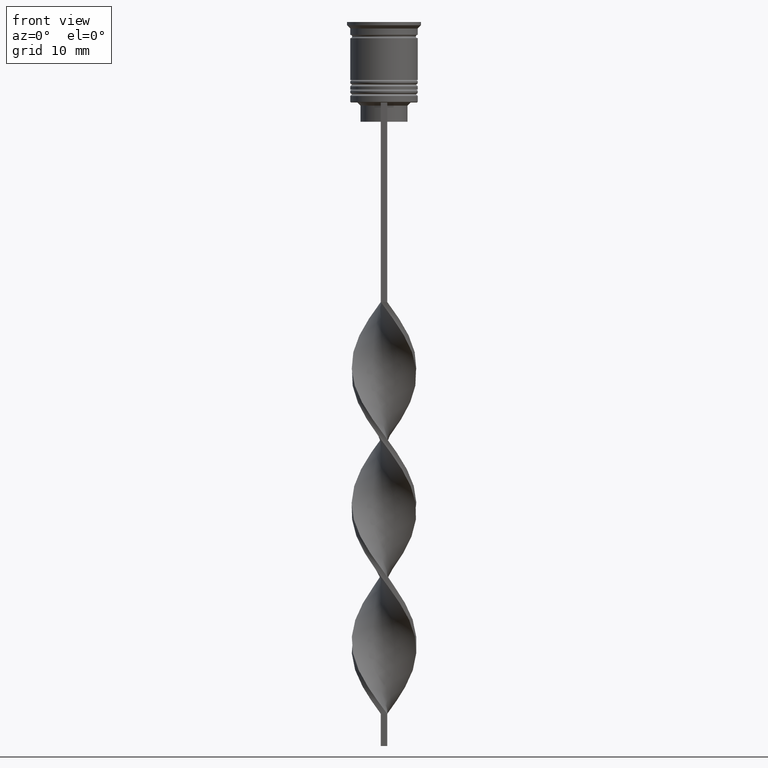
[diagram: clean part render]
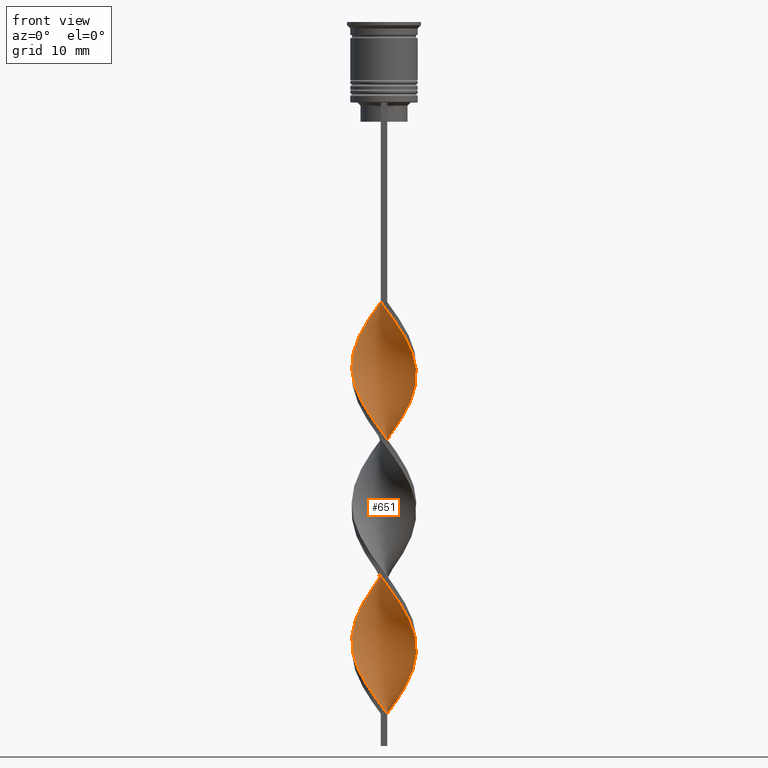
[diagram: same view with one face highlighted and labeled with its STEP entity id]
A machine part, front view. The second image highlights one B-rep face of the part: STEP entity #651.
In plain terms, the highlighted face is a freeform B-spline surface patch.
Its self-contained STEP definition (entity closure, byte-faithful):
#12 = CARTESIAN_POINT ( 'NONE',  ( 3.689868665289526284, -3.410992411735109808, -69.75641025641024839 ) ) ;
#14 = CARTESIAN_POINT ( 'NONE',  ( 0.1071099161113056170, 5.060710991611132137, -85.34615384615383959 ) ) ;
#34 = CARTESIAN_POINT ( 'NONE',  ( -4.225728863414810910, -2.786661774892328580, -57.44871794871794890 ) ) ;
#36 = CARTESIAN_POINT ( 'NONE',  ( -5.023812710617932886, 0.1063289642275891955, -96.01282051282051100 ) ) ;
#56 = CARTESIAN_POINT ( 'NONE',  ( -0.7111074127247647425, -4.974366919274038956, -105.8589743589743506 ) ) ;
#68 = VERTEX_POINT ( 'NONE', #864 ) ;
#77 = CARTESIAN_POINT ( 'NONE',  ( 2.941357917118423870, -4.074115069975903225, -91.08974358974359120 ) ) ;
#90 = CARTESIAN_POINT ( 'NONE',  ( -1.315104909338224992, -4.888022846936948440, -105.0384615384615330 ) ) ;
#92 =( BOUNDED_CURVE ( )  B_SPLINE_CURVE ( 2, ( #689, #2594, #987, #2858, #418, #1804, #153, #1236, #454, #973, #2071, #2329, #1537, #2630, #3406, #3140, #1181, #34, #284, #2375, #2644, #3191, #1940, #1835, #2467, #3434, #2093, #471, #3008, #568, #752, #487, #12, #821, #1363, #204, #3267, #1121, #1266, #1923, #2212, #2925, #1638, #3177, #2744, #3290, #2358, #1655, #861, #3450, #585, #1573, #300, #2390, #2666, #1381, #1023, #2189, #3025, #2451, #221, #1673, #1303, #1100, #1036, #3466, #2121, #187, #1006, #739, #2106, #2911, #1554, #1821, #1286, #3204, #1901, #2989, #554 ),
 .UNSPECIFIED., .F., .T. ) 
 B_SPLINE_CURVE_WITH_KNOTS ( ( 3, 2, 2, 2, 2, 2, 2, 2, 2, 2, 2, 2, 2, 2, 2, 2, 2, 2, 2, 2, 2, 2, 2, 2, 2, 2, 2, 2, 2, 2, 2, 2, 2, 2, 2, 2, 2, 2, 2, 3 ),
 ( 0.000000000000000000, 0.01923076923076923184, 0.03846153846153846367, 0.05769230769230768857, 0.07692307692307692735, 0.09615384615384615918, 0.1153846153846153771, 0.1346153846153846090, 0.1538461538461538547, 0.1730769230769230449, 0.1923076923076923184, 0.2115384615384615363, 0.2307692307692307543, 0.2500000000000000000, 0.2692307692307692180, 0.2884615384615384359, 0.3076923076923077094, 0.3269230769230769273, 0.3461538461538460898, 0.3653846153846153633, 0.3846153846153846367, 0.4038461538461539102, 0.4230769230769230727, 0.4423076923076922906, 0.4615384615384615086, 0.4807692307692307820, 0.5000000000000000000, 0.5192307692307692735, 0.5384615384615384359, 0.5576923076923077094, 0.5769230769230768718, 0.5961538461538461453, 0.6153846153846154188, 0.6346153846153845812, 0.6538461538461538547, 0.6730769230769230171, 0.6923076923076921796, 0.7115384615384615641, 0.7307692307692307265, 0.7500000000000000000 ),
 .UNSPECIFIED. ) 
 CURVE ( )  GEOMETRIC_REPRESENTATION_ITEM ( )  RATIONAL_B_SPLINE_CURVE ( ( 1.000000000000000000, 0.9927088740980539727, 1.000000000000000000, 0.9927088740980539727, 1.000000000000000000, 0.9927088740980539727, 1.000000000000000000, 0.9927088740980539727, 1.000000000000000000, 0.9927088740980539727, 1.000000000000000000, 0.9927088740980539727, 1.000000000000000000, 0.9927088740980539727, 1.000000000000000000, 0.9927088740980539727, 1.000000000000000000, 0.9927088740980539727, 1.000000000000000000, 0.9927088740980539727, 1.000000000000000000, 0.9927088740980539727, 1.000000000000000000, 0.9927088740980539727, 1.000000000000000000, 0.9927088740980539727, 1.000000000000000000, 0.9927088740980539727, 1.000000000000000000, 0.9927088740980539727, 1.000000000000000000, 0.9927088740980539727, 1.000000000000000000, 0.9927088740980539727, 1.000000000000000000, 0.9927088740980539727, 1.000000000000000000, 0.9927088740980539727, 1.000000000000000000, 0.9927088740980539727, 1.000000000000000000, 0.9927088740980539727, 1.000000000000000000, 0.9927088740980539727, 1.000000000000000000, 0.9927088740980539727, 1.000000000000000000, 0.9927088740980539727, 1.000000000000000000, 0.9927088740980539727, 1.000000000000000000, 0.9927088740980539727, 1.000000000000000000, 0.9927088740980539727, 1.000000000000000000, 0.9927088740980539727, 1.000000000000000000, 0.9927088740980539727, 1.000000000000000000, 0.9927088740980539727, 1.000000000000000000, 0.9927088740980539727, 1.000000000000000000, 0.9927088740980539727, 1.000000000000000000, 0.9927088740980539727, 1.000000000000000000, 0.9927088740980539727, 1.000000000000000000, 0.9927088740980539727, 1.000000000000000000, 0.9927088740980539727, 1.000000000000000000, 0.9927088740980539727, 1.000000000000000000, 0.9927088740980539727, 1.000000000000000000, 0.9927088740980539727, 1.000000000000000000 ) ) 
 REPRESENTATION_ITEM ( '' )  );
#102 = CARTESIAN_POINT ( 'NONE',  ( 4.693865276989234836, 1.894702360851922673, -57.44871794871794890 ) ) ;
#118 = CARTESIAN_POINT ( 'NONE',  ( 1.880887847392237244, -4.659641714287933389, -89.44871794871794179 ) ) ;
#144 = CARTESIAN_POINT ( 'NONE',  ( -0.5000000000000000000, -4.999999999999999112, -43.50000000000000000 ) ) ;
#153 = CARTESIAN_POINT ( 'NONE',  ( -3.689868665289526728, 3.410992411735109364, -48.42307692307691269 ) ) ;
#177 = CARTESIAN_POINT ( 'NONE',  ( 0.7111074127247624110, -4.974366919274038068, -45.14102564102563520 ) ) ;
#186 = CARTESIAN_POINT ( 'NONE',  ( -3.436045048790596468, 3.716969558312887667, -70.57692307692306599 ) ) ;
#187 = CARTESIAN_POINT ( 'NONE',  ( -4.769828676396804745, -1.694403338218443134, -98.47435897435896379 ) ) ;
#195 = CARTESIAN_POINT ( 'NONE',  ( 4.225728863414809133, -2.786661774892328136, -93.55128205128204399 ) ) ;
#201 = CARTESIAN_POINT ( 'NONE',  ( 4.852383656948341617, 1.305516313869969469, -56.62820512820513130 ) ) ;
#204 = CARTESIAN_POINT ( 'NONE',  ( 4.693865276989234836, -1.894702360851926892, -72.21794871794871540 ) ) ;
#211 = CARTESIAN_POINT ( 'NONE',  ( 2.256988544190328128, 4.530813501584091796, -62.37179487179486870 ) ) ;
#220 = CARTESIAN_POINT ( 'NONE',  ( 4.852383656948341617, 1.305516313869969469, -99.29487179487178139 ) ) ;
#221 = CARTESIAN_POINT ( 'NONE',  ( -4.398951702833860722, 2.428831800708952215, -92.73076923076922640 ) ) ;
#226 = CARTESIAN_POINT ( 'NONE',  ( -3.436045048790596468, 3.716969558312887667, -70.57692307692306599 ) ) ;
#235 = CARTESIAN_POINT ( 'NONE',  ( 3.689868665289526284, -3.410992411735109808, -69.75641025641024839 ) ) ;
#240 = CARTESIAN_POINT ( 'NONE',  ( -4.497778769905805163, 2.240532556555386634, -73.03846153846153300 ) ) ;
#247 = CARTESIAN_POINT ( 'NONE',  ( 1.107109916111302050, -4.939289008388870528, -65.65384615384614619 ) ) ;
#255 = CARTESIAN_POINT ( 'NONE',  ( 2.766343873045447488, 4.194918542244164605, -61.55128205128204399 ) ) ;
#266 = CARTESIAN_POINT ( 'NONE',  ( -4.398951702833860722, 2.428831800708952215, -50.06410256410256210 ) ) ;
#279 = CARTESIAN_POINT ( 'NONE',  ( 0.4999999999999993339, -5.000000000000000888, -107.5000000000000000 ) ) ;
#284 = CARTESIAN_POINT ( 'NONE',  ( -3.830886956102705021, -3.251815666602607013, -58.26923076923076650 ) ) ;
#285 = CARTESIAN_POINT ( 'NONE',  ( 1.682049230150813424, -4.735051254986482938, -66.47435897435896379 ) ) ;
#300 = CARTESIAN_POINT ( 'NONE',  ( -0.5000000000000000000, 5.000000000000000888, -86.16666666666667140 ) ) ;
#301 = CARTESIAN_POINT ( 'NONE',  ( -0.5000000000000000000, 5.000000000000000888, -86.16666666666667140 ) ) ;
#322 = CARTESIAN_POINT ( 'NONE',  ( -2.766343873045447932, 4.194918542244166382, -89.44871794871794179 ) ) ;
#341 = CARTESIAN_POINT ( 'NONE',  ( -0.1071099161113050757, -5.060710991611132137, -106.6794871794871682 ) ) ;
#355 = EDGE_CURVE ( 'NONE', #408, #3298, #3446, .T. ) ;
#359 = CARTESIAN_POINT ( 'NONE',  ( -1.682049230150814978, 4.735051254986482050, -87.80769230769230660 ) ) ;
#364 = ORIENTED_EDGE ( 'NONE', *, *, #1020, .F. ) ;
#365 = CARTESIAN_POINT ( 'NONE',  ( -5.023812710617931110, -0.1063289642275845326, -76.32051282051281760 ) ) ;
#379 = CARTESIAN_POINT ( 'NONE',  ( -4.104038128678484831, 2.962961240565979093, -91.91025641025643722 ) ) ;
#408 = VERTEX_POINT ( 'NONE', #3510 ) ;
#418 = CARTESIAN_POINT ( 'NONE',  ( -2.766343873045447932, 4.194918542244166382, -46.78205128205127750 ) ) ;
#452 = CARTESIAN_POINT ( 'NONE',  ( -4.693865276989234836, -1.894702360851920009, -78.78205128205127039 ) ) ;
#454 = CARTESIAN_POINT ( 'NONE',  ( -4.398951702833860722, 2.428831800708952215, -50.06410256410256210 ) ) ;
#461 = CARTESIAN_POINT ( 'NONE',  ( 0.5000000000000006661, 4.999999999999999112, -64.83333333333332860 ) ) ;
#469 = CARTESIAN_POINT ( 'NONE',  ( -3.830886956102703245, 3.251815666602607013, -71.39743589743588359 ) ) ;
#471 = CARTESIAN_POINT ( 'NONE',  ( 1.107109916111301828, -4.939289008388870528, -65.65384615384614619 ) ) ;
#476 = CARTESIAN_POINT ( 'NONE',  ( 3.275699201900567736, 3.859023582904236527, -103.3974358974358836 ) ) ;
#484 = CARTESIAN_POINT ( 'NONE',  ( 4.693865276989234836, -1.894702360851927114, -72.21794871794871540 ) ) ;
#487 = CARTESIAN_POINT ( 'NONE',  ( 3.275699201900568180, -3.859023582904239191, -68.93589743589743080 ) ) ;
#497 = CARTESIAN_POINT ( 'NONE',  ( 3.689868665289526728, 3.410992411735105811, -102.5769230769230660 ) ) ;
#507 = CARTESIAN_POINT ( 'NONE',  ( 5.010902036907450174, -0.7163302668880181523, -73.85897435897436480 ) ) ;
#513 = CARTESIAN_POINT ( 'NONE',  ( 4.104038128678485720, 2.962961240565976428, -101.7564102564102484 ) ) ;
#520 = CARTESIAN_POINT ( 'NONE',  ( 4.225728863414811798, 2.786661774892325916, -78.78205128205127039 ) ) ;
#526 = CARTESIAN_POINT ( 'NONE',  ( -5.023812710617931110, -0.1063289642275845326, -76.32051282051281760 ) ) ;
#534 = CARTESIAN_POINT ( 'NONE',  ( 4.769828676396802969, -1.694403338218443800, -95.19230769230769340 ) ) ;
#554 = CARTESIAN_POINT ( 'NONE',  ( 0.4999999999999993339, -5.000000000000000888, -107.5000000000000000 ) ) ;
#555 = CARTESIAN_POINT ( 'NONE',  ( -1.315104909338224992, -4.888022846936948440, -62.37179487179486870 ) ) ;
#568 = CARTESIAN_POINT ( 'NONE',  ( 2.256988544190325463, -4.530813501584094460, -67.29487179487178139 ) ) ;
#585 = CARTESIAN_POINT ( 'NONE',  ( 0.7111074127247676291, 4.974366919274039844, -84.52564102564103621 ) ) ;
#611 = CARTESIAN_POINT ( 'NONE',  ( -4.852383656948343393, 1.305516313869971912, -94.37179487179486159 ) ) ;
#618 = CARTESIAN_POINT ( 'NONE',  ( -5.036723384328412934, 0.5036723384328424258, -75.49999999999998579 ) ) ;
#634 = CARTESIAN_POINT ( 'NONE',  ( -4.225728863414807357, 2.786661774892329912, -72.21794871794871540 ) ) ;
#646 = CARTESIAN_POINT ( 'NONE',  ( -2.941357917118427423, -4.074115069975902337, -102.5769230769230660 ) ) ;
#651 = ADVANCED_FACE ( 'NONE', ( #2356 ), #730, .T. ) ;
#652 = CARTESIAN_POINT ( 'NONE',  ( 1.107109916111304715, 4.939289008388868751, -64.01282051282051100 ) ) ;
#676 = CARTESIAN_POINT ( 'NONE',  ( 5.036723384328412934, -0.5036723384328417596, -54.16666666666665719 ) ) ;
#689 = CARTESIAN_POINT ( 'NONE',  ( -0.5000000000000000000, 5.000000000000000888, -43.50000000000000000 ) ) ;
#730 =( BOUNDED_SURFACE ( )  B_SPLINE_SURFACE ( 1, 2, ( 
 ( #3071, #2002, #2894, #1430, #3349, #929, #2255, #2091, #2910, #1161, #946, #3089, #1199, #676, #2293, #1448, #201, #102, #738, #1699, #2516, #909, #1265, #3432, #2538, #652, #1758, #2561, #2024, #1985, #1536, #1819, #3054, #186, #469, #634, #2374, #1183, #1003, #618, #365, #2643, #1735, #452, #3175, #3109, #2829, #2790, #2628, #3367, #1472, #1553, #1283, #1717, #2808, #3449, #118, #1965, #77, #803, #1615, #1602, #1348, #534, #2388, #1316, #1084, #822, #220, #1069, #2119, #3501, #2155, #1050, #1021, #2958, #3202, #769, #3236 ),
 ( #2401, #1884, #2693, #2972, #3465, #2711, #3250, #2105, #266, #1902, #1850, #1364, #1586, #2434, #3190, #2945, #1639, #3479, #3513, #2171, #2992, #2140, #1833, #555, #2418, #2680, #2730, #247, #285, #2452, #750, #2664, #235, #2924, #1329, #484, #1571, #507, #1302, #1035, #3221, #790, #1870, #520, #2271, #1139, #3307, #1674, #1122, #880, #2763, #14, #301, #1101, #359, #2190, #322, #3324, #1958, #379, #2247, #3270, #611, #1942, #36, #3009, #1383, #1408, #2213, #2530, #2821, #3066, #646, #2228, #1178, #90, #56, #341, #3043 ) ),
 .UNSPECIFIED., .F., .F., .F. ) 
 B_SPLINE_SURFACE_WITH_KNOTS ( ( 2, 2 ),
 ( 3, 2, 2, 2, 2, 2, 2, 2, 2, 2, 2, 2, 2, 2, 2, 2, 2, 2, 2, 2, 2, 2, 2, 2, 2, 2, 2, 2, 2, 2, 2, 2, 2, 2, 2, 2, 2, 2, 2, 3 ),
 ( 0.000000000000000000, 1.000000000000000000 ),
 ( 0.000000000000000000, 0.01923076923076923184, 0.03846153846153846367, 0.05769230769230769551, 0.07692307692307692735, 0.09615384615384615918, 0.1153846153846153910, 0.1346153846153846090, 0.1538461538461538547, 0.1730769230769230727, 0.1923076923076923184, 0.2115384615384615363, 0.2307692307692307820, 0.2500000000000000000, 0.2692307692307692180, 0.2884615384615384359, 0.3076923076923077094, 0.3269230769230769273, 0.3461538461538461453, 0.3653846153846153633, 0.3846153846153846367, 0.4038461538461538547, 0.4230769230769230727, 0.4423076923076922906, 0.4615384615384615641, 0.4807692307692307820, 0.5000000000000000000, 0.5192307692307692735, 0.5384615384615384359, 0.5576923076923077094, 0.5769230769230768718, 0.5961538461538461453, 0.6153846153846154188, 0.6346153846153845812, 0.6538461538461538547, 0.6730769230769231282, 0.6923076923076922906, 0.7115384615384615641, 0.7307692307692307265, 0.7500000000000000000 ),
 .UNSPECIFIED. ) 
 GEOMETRIC_REPRESENTATION_ITEM ( )  RATIONAL_B_SPLINE_SURFACE ( (
 ( 1.000000000000000000, 0.9927088740980539727, 1.000000000000000000, 0.9927088740980539727, 1.000000000000000000, 0.9927088740980539727, 1.000000000000000000, 0.9927088740980539727, 1.000000000000000000, 0.9927088740980539727, 1.000000000000000000, 0.9927088740980539727, 1.000000000000000000, 0.9927088740980539727, 1.000000000000000000, 0.9927088740980539727, 1.000000000000000000, 0.9927088740980539727, 1.000000000000000000, 0.9927088740980539727, 1.000000000000000000, 0.9927088740980539727, 1.000000000000000000, 0.9927088740980539727, 1.000000000000000000, 0.9927088740980539727, 1.000000000000000000, 0.9927088740980539727, 1.000000000000000000, 0.9927088740980539727, 1.000000000000000000, 0.9927088740980539727, 1.000000000000000000, 0.9927088740980539727, 1.000000000000000000, 0.9927088740980539727, 1.000000000000000000, 0.9927088740980539727, 1.000000000000000000, 0.9927088740980539727, 1.000000000000000000, 0.9927088740980539727, 1.000000000000000000, 0.9927088740980539727, 1.000000000000000000, 0.9927088740980539727, 1.000000000000000000, 0.9927088740980539727, 1.000000000000000000, 0.9927088740980539727, 1.000000000000000000, 0.9927088740980539727, 1.000000000000000000, 0.9927088740980539727, 1.000000000000000000, 0.9927088740980539727, 1.000000000000000000, 0.9927088740980539727, 1.000000000000000000, 0.9927088740980539727, 1.000000000000000000, 0.9927088740980539727, 1.000000000000000000, 0.9927088740980539727, 1.000000000000000000, 0.9927088740980539727, 1.000000000000000000, 0.9927088740980539727, 1.000000000000000000, 0.9927088740980539727, 1.000000000000000000, 0.9927088740980539727, 1.000000000000000000, 0.9927088740980539727, 1.000000000000000000, 0.9927088740980539727, 1.000000000000000000, 0.9927088740980539727, 1.000000000000000000),
 ( 1.000000000000000000, 0.9927088740980539727, 1.000000000000000000, 0.9927088740980539727, 1.000000000000000000, 0.9927088740980539727, 1.000000000000000000, 0.9927088740980539727, 1.000000000000000000, 0.9927088740980539727, 1.000000000000000000, 0.9927088740980539727, 1.000000000000000000, 0.9927088740980539727, 1.000000000000000000, 0.9927088740980539727, 1.000000000000000000, 0.9927088740980539727, 1.000000000000000000, 0.9927088740980539727, 1.000000000000000000, 0.9927088740980539727, 1.000000000000000000, 0.9927088740980539727, 1.000000000000000000, 0.9927088740980539727, 1.000000000000000000, 0.9927088740980539727, 1.000000000000000000, 0.9927088740980539727, 1.000000000000000000, 0.9927088740980539727, 1.000000000000000000, 0.9927088740980539727, 1.000000000000000000, 0.9927088740980539727, 1.000000000000000000, 0.9927088740980539727, 1.000000000000000000, 0.9927088740980539727, 1.000000000000000000, 0.9927088740980539727, 1.000000000000000000, 0.9927088740980539727, 1.000000000000000000, 0.9927088740980539727, 1.000000000000000000, 0.9927088740980539727, 1.000000000000000000, 0.9927088740980539727, 1.000000000000000000, 0.9927088740980539727, 1.000000000000000000, 0.9927088740980539727, 1.000000000000000000, 0.9927088740980539727, 1.000000000000000000, 0.9927088740980539727, 1.000000000000000000, 0.9927088740980539727, 1.000000000000000000, 0.9927088740980539727, 1.000000000000000000, 0.9927088740980539727, 1.000000000000000000, 0.9927088740980539727, 1.000000000000000000, 0.9927088740980539727, 1.000000000000000000, 0.9927088740980539727, 1.000000000000000000, 0.9927088740980539727, 1.000000000000000000, 0.9927088740980539727, 1.000000000000000000, 0.9927088740980539727, 1.000000000000000000, 0.9927088740980539727, 1.000000000000000000) ) ) 
 REPRESENTATION_ITEM ( '' )  SURFACE ( )  );
#731 = CARTESIAN_POINT ( 'NONE',  ( -1.107109916111305603, -4.939289008388868751, -85.34615384615385381 ) ) ;
#738 = CARTESIAN_POINT ( 'NONE',  ( 4.398951702833859834, 2.428831800708949995, -58.26923076923076650 ) ) ;
#739 = CARTESIAN_POINT ( 'NONE',  ( -4.225728863414810910, -2.786661774892328580, -100.1153846153846132 ) ) ;
#744 = CARTESIAN_POINT ( 'NONE',  ( 4.104038128678485720, 2.962961240565976428, -59.08974358974358410 ) ) ;
#750 = CARTESIAN_POINT ( 'NONE',  ( 2.766343873045447488, -4.194918542244166382, -68.11538461538459899 ) ) ;
#752 = CARTESIAN_POINT ( 'NONE',  ( 2.766343873045447488, -4.194918542244166382, -68.11538461538459899 ) ) ;
#760 = CARTESIAN_POINT ( 'NONE',  ( 2.941357917118423870, -4.074115069975903225, -91.08974358974359120 ) ) ;
#769 = CARTESIAN_POINT ( 'NONE',  ( 1.107109916111304715, 4.939289008388868751, -106.6794871794871682 ) ) ;
#780 = CARTESIAN_POINT ( 'NONE',  ( 4.852383656948341617, 1.305516313869969469, -99.29487179487178139 ) ) ;
#790 = CARTESIAN_POINT ( 'NONE',  ( 4.769828676396806522, 1.694403338218441801, -77.14102564102563520 ) ) ;
#796 = CARTESIAN_POINT ( 'NONE',  ( 1.682049230150816088, 4.735051254986480274, -63.19230769230768630 ) ) ;
#803 = CARTESIAN_POINT ( 'NONE',  ( 3.436045048790597800, -3.716969558312886335, -91.91025641025643722 ) ) ;
#821 = CARTESIAN_POINT ( 'NONE',  ( 4.104038128678484831, -2.962961240565980425, -70.57692307692306599 ) ) ;
#822 = CARTESIAN_POINT ( 'NONE',  ( 5.010902036907448398, 0.7163302668880174862, -98.47435897435896379 ) ) ;
#861 = CARTESIAN_POINT ( 'NONE',  ( 1.880887847392241907, 4.659641714287933389, -82.88461538461537259 ) ) ;
#864 = CARTESIAN_POINT ( 'NONE',  ( 0.5000000000000006661, 4.999999999999999112, -107.5000000000000000 ) ) ;
#873 = CARTESIAN_POINT ( 'NONE',  ( -0.5000000000000000000, 5.000000000000000888, -43.50000000000000000 ) ) ;
#880 = CARTESIAN_POINT ( 'NONE',  ( 1.315104909338225436, 4.888022846936948440, -83.70512820512820440 ) ) ;
#909 = CARTESIAN_POINT ( 'NONE',  ( 3.275699201900568180, 3.859023582904236527, -60.73076923076922640 ) ) ;
#929 = CARTESIAN_POINT ( 'NONE',  ( 2.446670785446252161, -4.431260581638920115, -47.60256410256408799 ) ) ;
#946 = CARTESIAN_POINT ( 'NONE',  ( 4.497778769905805163, -2.240532556555385746, -51.70512820512820440 ) ) ;
#973 = CARTESIAN_POINT ( 'NONE',  ( -4.693865276989236612, 1.894702360851924228, -50.88461538461537970 ) ) ;
#981 = CARTESIAN_POINT ( 'NONE',  ( 1.315104909338222328, -4.888022846936947552, -45.96153846153845990 ) ) ;
#987 = CARTESIAN_POINT ( 'NONE',  ( -1.682049230150814978, 4.735051254986482050, -45.14102564102563520 ) ) ;
#990 = CARTESIAN_POINT ( 'NONE',  ( 0.4999999999999993339, -5.000000000000000888, -107.5000000000000000 ) ) ;
#1003 = CARTESIAN_POINT ( 'NONE',  ( -4.903276030362607507, 1.099037838325644723, -74.67948717948718240 ) ) ;
#1006 = CARTESIAN_POINT ( 'NONE',  ( -4.497778769905806939, -2.240532556555384858, -99.29487179487178139 ) ) ;
#1014 = CARTESIAN_POINT ( 'NONE',  ( 3.689868665289526728, 3.410992411735105811, -59.91025641025640880 ) ) ;
#1020 = EDGE_CURVE ( 'NONE', #408, #68, #1658, .T. ) ;
#1021 = CARTESIAN_POINT ( 'NONE',  ( 2.766343873045447488, 4.194918542244164605, -104.2179487179487012 ) ) ;
#1023 = CARTESIAN_POINT ( 'NONE',  ( -2.766343873045447932, 4.194918542244166382, -89.44871794871794179 ) ) ;
#1028 = CARTESIAN_POINT ( 'NONE',  ( -0.5000000000000000000, -4.999999999999999112, -86.16666666666667140 ) ) ;
#1035 = CARTESIAN_POINT ( 'NONE',  ( 5.036723384328414710, 0.5036723384328404274, -75.49999999999998579 ) ) ;
#1036 = CARTESIAN_POINT ( 'NONE',  ( -5.023812710617932886, 0.1063289642275891955, -96.01282051282051100 ) ) ;
#1041 = CARTESIAN_POINT ( 'NONE',  ( 4.903276030362607507, -1.099037838325642946, -96.01282051282051100 ) ) ;
#1050 = CARTESIAN_POINT ( 'NONE',  ( 3.275699201900568180, 3.859023582904236527, -103.3974358974358694 ) ) ;
#1060 = CARTESIAN_POINT ( 'NONE',  ( -5.036723384328413822, 0.5036723384328424258, -75.50000000000000000 ) ) ;
#1069 = CARTESIAN_POINT ( 'NONE',  ( 4.693865276989234836, 1.894702360851922673, -100.1153846153846274 ) ) ;
#1084 = CARTESIAN_POINT ( 'NONE',  ( 5.023812710617931110, 0.1063289642275872526, -97.65384615384614619 ) ) ;
#1100 = CARTESIAN_POINT ( 'NONE',  ( -5.010902036907450174, 0.7163302668880185964, -95.19230769230769340 ) ) ;
#1101 = CARTESIAN_POINT ( 'NONE',  ( -1.107109916111303161, 4.939289008388870528, -86.98717948717948900 ) ) ;
#1121 = CARTESIAN_POINT ( 'NONE',  ( 5.010902036907449286, -0.7163302668880181523, -73.85897435897436480 ) ) ;
#1122 = CARTESIAN_POINT ( 'NONE',  ( 1.880887847392241907, 4.659641714287933389, -82.88461538461537259 ) ) ;
#1139 = CARTESIAN_POINT ( 'NONE',  ( 3.436045048790602241, 3.716969558312884114, -80.42307692307691980 ) ) ;
#1161 = CARTESIAN_POINT ( 'NONE',  ( 4.225728863414809133, -2.786661774892327692, -50.88461538461538680 ) ) ;
#1178 = CARTESIAN_POINT ( 'NONE',  ( -1.880887847392239021, -4.659641714287934278, -104.2179487179487012 ) ) ;
#1181 = CARTESIAN_POINT ( 'NONE',  ( -4.497778769905806939, -2.240532556555384858, -56.62820512820513130 ) ) ;
#1183 = CARTESIAN_POINT ( 'NONE',  ( -4.769828676396803857, 1.694403338218443356, -73.85897435897436480 ) ) ;
#1191 = CARTESIAN_POINT ( 'NONE',  ( 3.830886956102703245, -3.251815666602607013, -50.06410256410256210 ) ) ;
#1199 = CARTESIAN_POINT ( 'NONE',  ( 4.903276030362607507, -1.099037838325642946, -53.34615384615383959 ) ) ;
#1204 = ORIENTED_EDGE ( 'NONE', *, *, #2675, .T. ) ;
#1236 = CARTESIAN_POINT ( 'NONE',  ( -4.104038128678485720, 2.962961240565979537, -49.24358974358974450 ) ) ;
#1241 = VERTEX_POINT ( 'NONE', #279 ) ;
#1258 = CARTESIAN_POINT ( 'NONE',  ( 2.446670785446252161, -4.431260581638919227, -47.60256410256409509 ) ) ;
#1265 = CARTESIAN_POINT ( 'NONE',  ( 2.766343873045447488, 4.194918542244164605, -61.55128205128204399 ) ) ;
#1266 = CARTESIAN_POINT ( 'NONE',  ( 5.023812710617932886, -0.1063289642275909302, -74.67948717948718240 ) ) ;
#1273 = CARTESIAN_POINT ( 'NONE',  ( -1.682049230150818975, -4.735051254986478497, -84.52564102564103621 ) ) ;
#1283 = CARTESIAN_POINT ( 'NONE',  ( -0.5000000000000000000, -4.999999999999999112, -86.16666666666667140 ) ) ;
#1286 = CARTESIAN_POINT ( 'NONE',  ( -1.880887847392239021, -4.659641714287934278, -104.2179487179487012 ) ) ;
#1294 = CARTESIAN_POINT ( 'NONE',  ( -5.010902036907448398, -0.7163302668880155988, -77.14102564102563520 ) ) ;
#1302 = CARTESIAN_POINT ( 'NONE',  ( 5.023812710617932886, -0.1063289642275909302, -74.67948717948718240 ) ) ;
#1303 = CARTESIAN_POINT ( 'NONE',  ( -4.852383656948343393, 1.305516313869971912, -94.37179487179486159 ) ) ;
#1309 = CARTESIAN_POINT ( 'NONE',  ( -2.256988544190328572, -4.530813501584091796, -83.70512820512820440 ) ) ;
#1316 = CARTESIAN_POINT ( 'NONE',  ( 5.036723384328412934, -0.5036723384328417596, -96.83333333333332860 ) ) ;
#1321 = CARTESIAN_POINT ( 'NONE',  ( -0.7111074127247609677, 4.974366919274038956, -66.47435897435896379 ) ) ;
#1325 = DIRECTION ( 'NONE',  ( 0.000000000000000000, 1.000000000000000000, 0.000000000000000000 ) ) ;
#1329 = CARTESIAN_POINT ( 'NONE',  ( 4.398951702833860722, -2.428831800708952215, -71.39743589743588359 ) ) ;
#1339 = CARTESIAN_POINT ( 'NONE',  ( 3.830886956102703245, -3.251815666602607013, -92.73076923076922640 ) ) ;
#1348 = CARTESIAN_POINT ( 'NONE',  ( 4.497778769905805163, -2.240532556555385746, -94.37179487179486159 ) ) ;
#1363 = CARTESIAN_POINT ( 'NONE',  ( 4.398951702833860722, -2.428831800708952215, -71.39743589743588359 ) ) ;
#1364 = CARTESIAN_POINT ( 'NONE',  ( -5.010902036907451063, 0.7163302668880185964, -52.52564102564103621 ) ) ;
#1381 = CARTESIAN_POINT ( 'NONE',  ( -2.256988544190327239, 4.530813501584094460, -88.62820512820512420 ) ) ;
#1383 = CARTESIAN_POINT ( 'NONE',  ( -4.903276030362609283, -1.099037838325641614, -97.65384615384614619 ) ) ;
#1384 = VECTOR ( 'NONE', #1325, 1000.000000000000000 ) ;
#1408 = CARTESIAN_POINT ( 'NONE',  ( -4.769828676396805633, -1.694403338218443356, -98.47435897435896379 ) ) ;
#1430 = CARTESIAN_POINT ( 'NONE',  ( 1.315104909338222106, -4.888022846936947552, -45.96153846153845279 ) ) ;
#1448 = CARTESIAN_POINT ( 'NONE',  ( 5.010902036907448398, 0.7163302668880174862, -55.80769230769230660 ) ) ;
#1472 = CARTESIAN_POINT ( 'NONE',  ( -1.682049230150818975, -4.735051254986478497, -84.52564102564103621 ) ) ;
#1525 = CARTESIAN_POINT ( 'NONE',  ( 0.5000000000000002220, 1.666666666666666075, -107.5000000000000000 ) ) ;
#1536 = CARTESIAN_POINT ( 'NONE',  ( -1.880887847392236800, 4.659641714287933389, -68.11538461538459899 ) ) ;
#1537 = CARTESIAN_POINT ( 'NONE',  ( -5.023812710617932886, 0.1063289642275891955, -53.34615384615383959 ) ) ;
#1544 = CARTESIAN_POINT ( 'NONE',  ( -4.693865276989234836, -1.894702360851920231, -78.78205128205127039 ) ) ;
#1553 = CARTESIAN_POINT ( 'NONE',  ( -1.107109916111305381, -4.939289008388868751, -85.34615384615383959 ) ) ;
#1554 = CARTESIAN_POINT ( 'NONE',  ( -2.941357917118427423, -4.074115069975902337, -102.5769230769230660 ) ) ;
#1560 = CARTESIAN_POINT ( 'NONE',  ( 3.275699201900567736, 3.859023582904236527, -60.73076923076922640 ) ) ;
#1565 = CARTESIAN_POINT ( 'NONE',  ( -0.5000000000000000000, -4.999999999999999112, -43.50000000000000000 ) ) ;
#1571 = CARTESIAN_POINT ( 'NONE',  ( 4.852383656948343393, -1.305516313869972578, -73.03846153846153300 ) ) ;
#1573 = CARTESIAN_POINT ( 'NONE',  ( 0.1071099161113056170, 5.060710991611131249, -85.34615384615385381 ) ) ;
#1578 = ORIENTED_EDGE ( 'NONE', *, *, #355, .T. ) ;
#1580 = CARTESIAN_POINT ( 'NONE',  ( 4.398951702833859834, 2.428831800708949995, -100.9358974358974308 ) ) ;
#1586 = CARTESIAN_POINT ( 'NONE',  ( -5.023812710617932886, 0.1063289642275891955, -53.34615384615383959 ) ) ;
#1593 = CARTESIAN_POINT ( 'NONE',  ( 5.036723384328413822, -0.5036723384328417596, -54.16666666666666430 ) ) ;
#1602 = CARTESIAN_POINT ( 'NONE',  ( 4.225728863414809133, -2.786661774892327692, -93.55128205128204399 ) ) ;
#1607 = CARTESIAN_POINT ( 'NONE',  ( -3.689868665289527172, -3.410992411735105367, -81.24358974358973740 ) ) ;
#1615 = CARTESIAN_POINT ( 'NONE',  ( 3.830886956102703245, -3.251815666602607013, -92.73076923076922640 ) ) ;
#1638 = CARTESIAN_POINT ( 'NONE',  ( 4.497778769905806939, 2.240532556555385302, -77.96153846153845279 ) ) ;
#1639 = CARTESIAN_POINT ( 'NONE',  ( -4.497778769905806939, -2.240532556555384858, -56.62820512820513130 ) ) ;
#1655 = CARTESIAN_POINT ( 'NONE',  ( 2.446670785446254381, 4.431260581638920115, -82.06410256410255499 ) ) ;
#1658 =( BOUNDED_CURVE ( )  B_SPLINE_CURVE ( 2, ( #144, #2604, #177, #981, #2066, #1258, #2350, #3079, #1191, #3357, #2686, #2672, #2406, #1593, #3442, #2380, #2148, #1876, #2128, #744, #1014, #1560, #255, #211, #796, #1812, #461, #2364, #1321, #3489, #2652, #3456, #1861, #226, #3211, #2099, #240, #2964, #3164, #1060, #526, #1294, #3471, #1544, #3227, #2637, #1607, #1826, #2395, #1309, #1273, #731, #1028, #2699, #2112, #2952, #2933, #3196, #760, #2425, #1339, #195, #1840, #3506, #1041, #2080, #2902, #2917, #780, #3183, #1580, #513, #497, #476, #3015, #2179, #3257, #2219, #1663 ),
 .UNSPECIFIED., .F., .T. ) 
 B_SPLINE_CURVE_WITH_KNOTS ( ( 3, 2, 2, 2, 2, 2, 2, 2, 2, 2, 2, 2, 2, 2, 2, 2, 2, 2, 2, 2, 2, 2, 2, 2, 2, 2, 2, 2, 2, 2, 2, 2, 2, 2, 2, 2, 2, 2, 2, 3 ),
 ( 0.000000000000000000, 0.01923076923076923184, 0.03846153846153846367, 0.05769230769230768857, 0.07692307692307692735, 0.09615384615384615918, 0.1153846153846153771, 0.1346153846153846090, 0.1538461538461538547, 0.1730769230769230449, 0.1923076923076923184, 0.2115384615384615363, 0.2307692307692307543, 0.2500000000000000000, 0.2692307692307692180, 0.2884615384615384359, 0.3076923076923077094, 0.3269230769230769273, 0.3461538461538460898, 0.3653846153846153633, 0.3846153846153846367, 0.4038461538461539102, 0.4230769230769230727, 0.4423076923076922906, 0.4615384615384615086, 0.4807692307692307820, 0.5000000000000000000, 0.5192307692307692735, 0.5384615384615384359, 0.5576923076923077094, 0.5769230769230768718, 0.5961538461538461453, 0.6153846153846154188, 0.6346153846153845812, 0.6538461538461538547, 0.6730769230769230171, 0.6923076923076921796, 0.7115384615384615641, 0.7307692307692307265, 0.7500000000000000000 ),
 .UNSPECIFIED. ) 
 CURVE ( )  GEOMETRIC_REPRESENTATION_ITEM ( )  RATIONAL_B_SPLINE_CURVE ( ( 1.000000000000000000, 0.9927088740980539727, 1.000000000000000000, 0.9927088740980539727, 1.000000000000000000, 0.9927088740980539727, 1.000000000000000000, 0.9927088740980539727, 1.000000000000000000, 0.9927088740980539727, 1.000000000000000000, 0.9927088740980539727, 1.000000000000000000, 0.9927088740980539727, 1.000000000000000000, 0.9927088740980539727, 1.000000000000000000, 0.9927088740980539727, 1.000000000000000000, 0.9927088740980539727, 1.000000000000000000, 0.9927088740980539727, 1.000000000000000000, 0.9927088740980539727, 1.000000000000000000, 0.9927088740980539727, 1.000000000000000000, 0.9927088740980539727, 1.000000000000000000, 0.9927088740980539727, 1.000000000000000000, 0.9927088740980539727, 1.000000000000000000, 0.9927088740980539727, 1.000000000000000000, 0.9927088740980539727, 1.000000000000000000, 0.9927088740980539727, 1.000000000000000000, 0.9927088740980539727, 1.000000000000000000, 0.9927088740980539727, 1.000000000000000000, 0.9927088740980539727, 1.000000000000000000, 0.9927088740980539727, 1.000000000000000000, 0.9927088740980539727, 1.000000000000000000, 0.9927088740980539727, 1.000000000000000000, 0.9927088740980539727, 1.000000000000000000, 0.9927088740980539727, 1.000000000000000000, 0.9927088740980539727, 1.000000000000000000, 0.9927088740980539727, 1.000000000000000000, 0.9927088740980539727, 1.000000000000000000, 0.9927088740980539727, 1.000000000000000000, 0.9927088740980539727, 1.000000000000000000, 0.9927088740980539727, 1.000000000000000000, 0.9927088740980539727, 1.000000000000000000, 0.9927088740980539727, 1.000000000000000000, 0.9927088740980539727, 1.000000000000000000, 0.9927088740980539727, 1.000000000000000000, 0.9927088740980539727, 1.000000000000000000, 0.9927088740980539727, 1.000000000000000000 ) ) 
 REPRESENTATION_ITEM ( '' )  );
#1663 = CARTESIAN_POINT ( 'NONE',  ( 0.5000000000000006661, 4.999999999999999112, -107.5000000000000000 ) ) ;
#1673 = CARTESIAN_POINT ( 'NONE',  ( -4.693865276989236612, 1.894702360851924228, -93.55128205128204399 ) ) ;
#1674 = CARTESIAN_POINT ( 'NONE',  ( 2.446670785446254381, 4.431260581638921003, -82.06410256410255499 ) ) ;
#1699 = CARTESIAN_POINT ( 'NONE',  ( 4.104038128678484831, 2.962961240565976428, -59.08974358974359120 ) ) ;
#1717 = CARTESIAN_POINT ( 'NONE',  ( 0.1071099161113025638, -5.060710991611130360, -86.98717948717948900 ) ) ;
#1734 = ORIENTED_EDGE ( 'NONE', *, *, #2322, .F. ) ;
#1735 = CARTESIAN_POINT ( 'NONE',  ( -4.852383656948341617, -1.305516313869969913, -77.96153846153845279 ) ) ;
#1758 = CARTESIAN_POINT ( 'NONE',  ( 0.5000000000000006661, 4.999999999999999112, -64.83333333333332860 ) ) ;
#1804 = CARTESIAN_POINT ( 'NONE',  ( -3.275699201900568180, 3.859023582904238303, -47.60256410256409509 ) ) ;
#1812 = CARTESIAN_POINT ( 'NONE',  ( 1.107109916111304937, 4.939289008388868751, -64.01282051282051100 ) ) ;
#1819 = CARTESIAN_POINT ( 'NONE',  ( -2.446670785446251273, 4.431260581638920115, -68.93589743589743080 ) ) ;
#1821 = CARTESIAN_POINT ( 'NONE',  ( -2.446670785446253937, -4.431260581638920115, -103.3974358974358836 ) ) ;
#1826 = CARTESIAN_POINT ( 'NONE',  ( -3.275699201900568625, -3.859023582904236527, -82.06410256410255499 ) ) ;
#1833 = CARTESIAN_POINT ( 'NONE',  ( -1.880887847392239021, -4.659641714287934278, -61.55128205128204399 ) ) ;
#1835 = CARTESIAN_POINT ( 'NONE',  ( -1.315104909338224770, -4.888022846936948440, -62.37179487179486870 ) ) ;
#1840 = CARTESIAN_POINT ( 'NONE',  ( 4.497778769905805163, -2.240532556555385746, -94.37179487179486159 ) ) ;
#1850 = CARTESIAN_POINT ( 'NONE',  ( -4.852383656948343393, 1.305516313869971912, -51.70512820512820440 ) ) ;
#1861 = CARTESIAN_POINT ( 'NONE',  ( -2.941357917118423870, 4.074115069975903225, -69.75641025641024839 ) ) ;
#1870 = CARTESIAN_POINT ( 'NONE',  ( 4.497778769905806939, 2.240532556555385302, -77.96153846153845279 ) ) ;
#1876 = CARTESIAN_POINT ( 'NONE',  ( 4.693865276989234836, 1.894702360851922895, -57.44871794871794890 ) ) ;
#1884 = CARTESIAN_POINT ( 'NONE',  ( -1.107109916111303161, 4.939289008388870528, -44.32051282051282470 ) ) ;
#1901 = CARTESIAN_POINT ( 'NONE',  ( -0.7111074127247647425, -4.974366919274038956, -105.8589743589743506 ) ) ;
#1902 = CARTESIAN_POINT ( 'NONE',  ( -4.693865276989236612, 1.894702360851924006, -50.88461538461538680 ) ) ;
#1923 = CARTESIAN_POINT ( 'NONE',  ( 5.036723384328415598, 0.5036723384328405384, -75.50000000000000000 ) ) ;
#1940 = CARTESIAN_POINT ( 'NONE',  ( -1.880887847392239021, -4.659641714287934278, -61.55128205128204399 ) ) ;
#1942 = CARTESIAN_POINT ( 'NONE',  ( -5.010902036907451063, 0.7163302668880185964, -95.19230769230769340 ) ) ;
#1958 = CARTESIAN_POINT ( 'NONE',  ( -3.689868665289526728, 3.410992411735109364, -91.08974358974359120 ) ) ;
#1965 = CARTESIAN_POINT ( 'NONE',  ( 2.446670785446252161, -4.431260581638920115, -90.26923076923075939 ) ) ;
#1985 = CARTESIAN_POINT ( 'NONE',  ( -1.315104909338220551, 4.888022846936948440, -67.29487179487178139 ) ) ;
#2002 = CARTESIAN_POINT ( 'NONE',  ( 0.1071099161113025638, -5.060710991611130360, -44.32051282051282470 ) ) ;
#2022 = EDGE_LOOP ( 'NONE', ( #1578, #1204, #1734, #364 ) ) ;
#2024 = CARTESIAN_POINT ( 'NONE',  ( -0.7111074127247609677, 4.974366919274038956, -66.47435897435896379 ) ) ;
#2066 = CARTESIAN_POINT ( 'NONE',  ( 1.880887847392237244, -4.659641714287933389, -46.78205128205127750 ) ) ;
#2071 = CARTESIAN_POINT ( 'NONE',  ( -4.852383656948343393, 1.305516313869971912, -51.70512820512820440 ) ) ;
#2080 = CARTESIAN_POINT ( 'NONE',  ( 5.036723384328413822, -0.5036723384328417596, -96.83333333333332860 ) ) ;
#2091 = CARTESIAN_POINT ( 'NONE',  ( 3.436045048790597800, -3.716969558312886335, -49.24358974358973740 ) ) ;
#2093 = CARTESIAN_POINT ( 'NONE',  ( 0.4999999999999993339, -5.000000000000000888, -64.83333333333332860 ) ) ;
#2099 = CARTESIAN_POINT ( 'NONE',  ( -4.225728863414807357, 2.786661774892330357, -72.21794871794871540 ) ) ;
#2105 = CARTESIAN_POINT ( 'NONE',  ( -4.104038128678484831, 2.962961240565979093, -49.24358974358973740 ) ) ;
#2106 = CARTESIAN_POINT ( 'NONE',  ( -3.830886956102705021, -3.251815666602607013, -100.9358974358974308 ) ) ;
#2112 = CARTESIAN_POINT ( 'NONE',  ( 0.7111074127247624110, -4.974366919274038068, -87.80769230769230660 ) ) ;
#2119 = CARTESIAN_POINT ( 'NONE',  ( 4.398951702833859834, 2.428831800708949995, -100.9358974358974308 ) ) ;
#2121 = CARTESIAN_POINT ( 'NONE',  ( -4.903276030362609283, -1.099037838325641614, -97.65384615384614619 ) ) ;
#2128 = CARTESIAN_POINT ( 'NONE',  ( 4.398951702833859834, 2.428831800708949995, -58.26923076923076650 ) ) ;
#2140 = CARTESIAN_POINT ( 'NONE',  ( -2.446670785446253937, -4.431260581638921003, -60.73076923076922640 ) ) ;
#2148 = CARTESIAN_POINT ( 'NONE',  ( 4.852383656948341617, 1.305516313869969469, -56.62820512820513130 ) ) ;
#2155 = CARTESIAN_POINT ( 'NONE',  ( 3.689868665289526728, 3.410992411735105811, -102.5769230769230660 ) ) ;
#2171 = CARTESIAN_POINT ( 'NONE',  ( -3.436045048790600465, -3.716969558312885891, -59.08974358974359120 ) ) ;
#2179 = CARTESIAN_POINT ( 'NONE',  ( 2.256988544190328128, 4.530813501584091796, -105.0384615384615188 ) ) ;
#2189 = CARTESIAN_POINT ( 'NONE',  ( -3.275699201900568180, 3.859023582904238303, -90.26923076923077360 ) ) ;
#2190 = CARTESIAN_POINT ( 'NONE',  ( -2.256988544190326795, 4.530813501584094460, -88.62820512820513841 ) ) ;
#2212 = CARTESIAN_POINT ( 'NONE',  ( 4.903276030362611060, 1.099037838325638727, -76.32051282051281760 ) ) ;
#2213 = CARTESIAN_POINT ( 'NONE',  ( -4.497778769905806939, -2.240532556555384858, -99.29487179487178139 ) ) ;
#2219 = CARTESIAN_POINT ( 'NONE',  ( 1.107109916111304937, 4.939289008388868751, -106.6794871794871824 ) ) ;
#2228 = CARTESIAN_POINT ( 'NONE',  ( -2.446670785446253937, -4.431260581638921003, -103.3974358974358694 ) ) ;
#2247 = CARTESIAN_POINT ( 'NONE',  ( -4.398951702833860722, 2.428831800708952215, -92.73076923076922640 ) ) ;
#2255 = CARTESIAN_POINT ( 'NONE',  ( 2.941357917118423870, -4.074115069975903225, -48.42307692307691269 ) ) ;
#2271 = CARTESIAN_POINT ( 'NONE',  ( 3.830886956102705465, 3.251815666602607013, -79.60256410256410220 ) ) ;
#2293 = CARTESIAN_POINT ( 'NONE',  ( 5.023812710617931110, 0.1063289642275872526, -54.98717948717948190 ) ) ;
#2322 = EDGE_CURVE ( 'NONE', #68, #1241, #2576, .T. ) ;
#2329 = CARTESIAN_POINT ( 'NONE',  ( -5.010902036907450174, 0.7163302668880185964, -52.52564102564102910 ) ) ;
#2350 = CARTESIAN_POINT ( 'NONE',  ( 2.941357917118423870, -4.074115069975903225, -48.42307692307691269 ) ) ;
#2356 = FACE_OUTER_BOUND ( 'NONE', #2022, .T. ) ;
#2358 = CARTESIAN_POINT ( 'NONE',  ( 2.941357917118427867, 4.074115069975902337, -81.24358974358973740 ) ) ;
#2364 = CARTESIAN_POINT ( 'NONE',  ( -0.1071099161113013842, 5.060710991611129472, -65.65384615384614619 ) ) ;
#2374 = CARTESIAN_POINT ( 'NONE',  ( -4.497778769905805163, 2.240532556555386634, -73.03846153846153300 ) ) ;
#2375 = CARTESIAN_POINT ( 'NONE',  ( -3.436045048790600465, -3.716969558312885891, -59.08974358974358410 ) ) ;
#2380 = CARTESIAN_POINT ( 'NONE',  ( 5.010902036907447510, 0.7163302668880174862, -55.80769230769230660 ) ) ;
#2388 = CARTESIAN_POINT ( 'NONE',  ( 4.903276030362607507, -1.099037838325642946, -96.01282051282051100 ) ) ;
#2390 = CARTESIAN_POINT ( 'NONE',  ( -1.107109916111303161, 4.939289008388870528, -86.98717948717948900 ) ) ;
#2395 = CARTESIAN_POINT ( 'NONE',  ( -2.766343873045450152, -4.194918542244163717, -82.88461538461537259 ) ) ;
#2401 = CARTESIAN_POINT ( 'NONE',  ( -0.5000000000000000000, 5.000000000000000888, -43.50000000000000000 ) ) ;
#2406 = CARTESIAN_POINT ( 'NONE',  ( 4.903276030362607507, -1.099037838325642946, -53.34615384615383959 ) ) ;
#2418 = CARTESIAN_POINT ( 'NONE',  ( -0.7111074127247647425, -4.974366919274038956, -63.19230769230768630 ) ) ;
#2425 = CARTESIAN_POINT ( 'NONE',  ( 3.436045048790597800, -3.716969558312886335, -91.91025641025643722 ) ) ;
#2434 = CARTESIAN_POINT ( 'NONE',  ( -5.036723384328414710, -0.5036723384328410935, -54.16666666666665719 ) ) ;
#2451 = CARTESIAN_POINT ( 'NONE',  ( -4.104038128678485720, 2.962961240565979537, -91.91025641025643722 ) ) ;
#2452 = CARTESIAN_POINT ( 'NONE',  ( 2.256988544190325463, -4.530813501584094460, -67.29487179487178139 ) ) ;
#2467 = CARTESIAN_POINT ( 'NONE',  ( -0.7111074127247647425, -4.974366919274038956, -63.19230769230768630 ) ) ;
#2516 = CARTESIAN_POINT ( 'NONE',  ( 3.689868665289526728, 3.410992411735105811, -59.91025641025640880 ) ) ;
#2530 = CARTESIAN_POINT ( 'NONE',  ( -4.225728863414810910, -2.786661774892328136, -100.1153846153846274 ) ) ;
#2538 = CARTESIAN_POINT ( 'NONE',  ( 1.682049230150816088, 4.735051254986480274, -63.19230769230768630 ) ) ;
#2561 = CARTESIAN_POINT ( 'NONE',  ( -0.1071099161113013842, 5.060710991611130360, -65.65384615384614619 ) ) ;
#2576 = B_SPLINE_CURVE_WITH_KNOTS ( 'NONE', 3,
 ( #2879, #1525, #3421, #990 ),
 .UNSPECIFIED., .F., .F.,
 ( 4, 4 ),
 ( 0.000000000000000000, 1.000000000000000000 ),
 .UNSPECIFIED. ) ;
#2594 = CARTESIAN_POINT ( 'NONE',  ( -1.107109916111303161, 4.939289008388870528, -44.32051282051282470 ) ) ;
#2604 = CARTESIAN_POINT ( 'NONE',  ( 0.1071099161113025777, -5.060710991611129472, -44.32051282051282470 ) ) ;
#2628 = CARTESIAN_POINT ( 'NONE',  ( -2.766343873045450152, -4.194918542244163717, -82.88461538461537259 ) ) ;
#2630 = CARTESIAN_POINT ( 'NONE',  ( -5.036723384328415598, -0.5036723384328410935, -54.16666666666666430 ) ) ;
#2637 = CARTESIAN_POINT ( 'NONE',  ( -4.104038128678487496, -2.962961240565973764, -80.42307692307691980 ) ) ;
#2643 = CARTESIAN_POINT ( 'NONE',  ( -5.010902036907449286, -0.7163302668880155988, -77.14102564102563520 ) ) ;
#2644 = CARTESIAN_POINT ( 'NONE',  ( -2.941357917118427423, -4.074115069975902337, -59.91025641025640880 ) ) ;
#2652 = CARTESIAN_POINT ( 'NONE',  ( -1.880887847392236800, 4.659641714287933389, -68.11538461538459899 ) ) ;
#2664 = CARTESIAN_POINT ( 'NONE',  ( 3.275699201900568180, -3.859023582904239191, -68.93589743589743080 ) ) ;
#2666 = CARTESIAN_POINT ( 'NONE',  ( -1.682049230150814978, 4.735051254986482050, -87.80769230769230660 ) ) ;
#2672 = CARTESIAN_POINT ( 'NONE',  ( 4.769828676396802969, -1.694403338218443578, -52.52564102564102910 ) ) ;
#2675 = EDGE_CURVE ( 'NONE', #3298, #1241, #92, .T. ) ;
#2680 = CARTESIAN_POINT ( 'NONE',  ( -0.1071099161113050757, -5.060710991611132137, -64.01282051282051100 ) ) ;
#2686 = CARTESIAN_POINT ( 'NONE',  ( 4.497778769905805163, -2.240532556555385746, -51.70512820512820440 ) ) ;
#2693 = CARTESIAN_POINT ( 'NONE',  ( -1.682049230150814978, 4.735051254986482050, -45.14102564102563520 ) ) ;
#2699 = CARTESIAN_POINT ( 'NONE',  ( 0.1071099161113025777, -5.060710991611129472, -86.98717948717948900 ) ) ;
#2711 = CARTESIAN_POINT ( 'NONE',  ( -3.275699201900568180, 3.859023582904238303, -47.60256410256408799 ) ) ;
#2730 = CARTESIAN_POINT ( 'NONE',  ( 0.4999999999999993339, -5.000000000000000888, -64.83333333333332860 ) ) ;
#2744 = CARTESIAN_POINT ( 'NONE',  ( 3.830886956102705465, 3.251815666602607013, -79.60256410256410220 ) ) ;
#2763 = CARTESIAN_POINT ( 'NONE',  ( 0.7111074127247676291, 4.974366919274039844, -84.52564102564103621 ) ) ;
#2790 = CARTESIAN_POINT ( 'NONE',  ( -3.275699201900568625, -3.859023582904236527, -82.06410256410255499 ) ) ;
#2808 = CARTESIAN_POINT ( 'NONE',  ( 0.7111074127247624110, -4.974366919274038068, -87.80769230769230660 ) ) ;
#2821 = CARTESIAN_POINT ( 'NONE',  ( -3.830886956102705021, -3.251815666602607013, -100.9358974358974308 ) ) ;
#2829 = CARTESIAN_POINT ( 'NONE',  ( -3.689868665289527172, -3.410992411735105367, -81.24358974358973740 ) ) ;
#2858 = CARTESIAN_POINT ( 'NONE',  ( -2.256988544190327239, 4.530813501584094460, -45.96153846153845990 ) ) ;
#2879 = CARTESIAN_POINT ( 'NONE',  ( 0.5000000000000006661, 4.999999999999999112, -107.5000000000000000 ) ) ;
#2894 = CARTESIAN_POINT ( 'NONE',  ( 0.7111074127247624110, -4.974366919274038068, -45.14102564102563520 ) ) ;
#2902 = CARTESIAN_POINT ( 'NONE',  ( 5.023812710617931110, 0.1063289642275872526, -97.65384615384614619 ) ) ;
#2910 = CARTESIAN_POINT ( 'NONE',  ( 3.830886956102703245, -3.251815666602607013, -50.06410256410256210 ) ) ;
#2911 = CARTESIAN_POINT ( 'NONE',  ( -3.436045048790600465, -3.716969558312885891, -101.7564102564102484 ) ) ;
#2917 = CARTESIAN_POINT ( 'NONE',  ( 5.010902036907447510, 0.7163302668880174862, -98.47435897435896379 ) ) ;
#2924 = CARTESIAN_POINT ( 'NONE',  ( 4.104038128678483943, -2.962961240565979981, -70.57692307692306599 ) ) ;
#2925 = CARTESIAN_POINT ( 'NONE',  ( 4.769828676396805633, 1.694403338218441579, -77.14102564102563520 ) ) ;
#2933 = CARTESIAN_POINT ( 'NONE',  ( 1.880887847392237244, -4.659641714287933389, -89.44871794871794179 ) ) ;
#2945 = CARTESIAN_POINT ( 'NONE',  ( -4.769828676396805633, -1.694403338218443356, -55.80769230769230660 ) ) ;
#2952 = CARTESIAN_POINT ( 'NONE',  ( 1.315104909338222328, -4.888022846936947552, -88.62820512820512420 ) ) ;
#2958 = CARTESIAN_POINT ( 'NONE',  ( 2.256988544190327683, 4.530813501584091796, -105.0384615384615330 ) ) ;
#2964 = CARTESIAN_POINT ( 'NONE',  ( -4.769828676396803857, 1.694403338218443134, -73.85897435897436480 ) ) ;
#2972 = CARTESIAN_POINT ( 'NONE',  ( -2.256988544190326795, 4.530813501584094460, -45.96153846153845279 ) ) ;
#2989 = CARTESIAN_POINT ( 'NONE',  ( -0.1071099161113050757, -5.060710991611131249, -106.6794871794871824 ) ) ;
#2992 = CARTESIAN_POINT ( 'NONE',  ( -2.941357917118427423, -4.074115069975902337, -59.91025641025640880 ) ) ;
#3008 = CARTESIAN_POINT ( 'NONE',  ( 1.682049230150813424, -4.735051254986482938, -66.47435897435896379 ) ) ;
#3009 = CARTESIAN_POINT ( 'NONE',  ( -5.036723384328414710, -0.5036723384328410935, -96.83333333333332860 ) ) ;
#3015 = CARTESIAN_POINT ( 'NONE',  ( 2.766343873045447488, 4.194918542244164605, -104.2179487179487012 ) ) ;
#3025 = CARTESIAN_POINT ( 'NONE',  ( -3.689868665289526728, 3.410992411735109364, -91.08974358974359120 ) ) ;
#3043 = CARTESIAN_POINT ( 'NONE',  ( 0.4999999999999993339, -5.000000000000000888, -107.5000000000000000 ) ) ;
#3054 = CARTESIAN_POINT ( 'NONE',  ( -2.941357917118423870, 4.074115069975903225, -69.75641025641024839 ) ) ;
#3066 = CARTESIAN_POINT ( 'NONE',  ( -3.436045048790600465, -3.716969558312885891, -101.7564102564102484 ) ) ;
#3071 = CARTESIAN_POINT ( 'NONE',  ( -0.5000000000000000000, -4.999999999999999112, -43.50000000000000000 ) ) ;
#3079 = CARTESIAN_POINT ( 'NONE',  ( 3.436045048790597800, -3.716969558312886335, -49.24358974358974450 ) ) ;
#3089 = CARTESIAN_POINT ( 'NONE',  ( 4.769828676396802969, -1.694403338218443800, -52.52564102564103621 ) ) ;
#3109 = CARTESIAN_POINT ( 'NONE',  ( -4.104038128678486608, -2.962961240565973764, -80.42307692307691980 ) ) ;
#3140 = CARTESIAN_POINT ( 'NONE',  ( -4.769828676396804745, -1.694403338218443134, -55.80769230769230660 ) ) ;
#3164 = CARTESIAN_POINT ( 'NONE',  ( -4.903276030362607507, 1.099037838325644723, -74.67948717948718240 ) ) ;
#3175 = CARTESIAN_POINT ( 'NONE',  ( -4.398951702833860722, -2.428831800708949551, -79.60256410256410220 ) ) ;
#3177 = CARTESIAN_POINT ( 'NONE',  ( 4.225728863414812686, 2.786661774892325916, -78.78205128205127039 ) ) ;
#3183 = CARTESIAN_POINT ( 'NONE',  ( 4.693865276989234836, 1.894702360851922895, -100.1153846153846132 ) ) ;
#3190 = CARTESIAN_POINT ( 'NONE',  ( -4.903276030362609283, -1.099037838325641614, -54.98717948717948190 ) ) ;
#3191 = CARTESIAN_POINT ( 'NONE',  ( -2.446670785446253937, -4.431260581638920115, -60.73076923076922640 ) ) ;
#3196 = CARTESIAN_POINT ( 'NONE',  ( 2.446670785446252161, -4.431260581638919227, -90.26923076923077360 ) ) ;
#3202 = CARTESIAN_POINT ( 'NONE',  ( 1.682049230150816088, 4.735051254986480274, -105.8589743589743506 ) ) ;
#3204 = CARTESIAN_POINT ( 'NONE',  ( -1.315104909338224770, -4.888022846936948440, -105.0384615384615188 ) ) ;
#3211 = CARTESIAN_POINT ( 'NONE',  ( -3.830886956102703245, 3.251815666602607013, -71.39743589743588359 ) ) ;
#3221 = CARTESIAN_POINT ( 'NONE',  ( 4.903276030362611060, 1.099037838325638727, -76.32051282051281760 ) ) ;
#3227 = CARTESIAN_POINT ( 'NONE',  ( -4.398951702833860722, -2.428831800708949551, -79.60256410256410220 ) ) ;
#3236 = CARTESIAN_POINT ( 'NONE',  ( 0.5000000000000006661, 4.999999999999999112, -107.5000000000000000 ) ) ;
#3250 = CARTESIAN_POINT ( 'NONE',  ( -3.689868665289526728, 3.410992411735109364, -48.42307692307691269 ) ) ;
#3257 = CARTESIAN_POINT ( 'NONE',  ( 1.682049230150816088, 4.735051254986480274, -105.8589743589743506 ) ) ;
#3267 = CARTESIAN_POINT ( 'NONE',  ( 4.852383656948343393, -1.305516313869972578, -73.03846153846153300 ) ) ;
#3270 = CARTESIAN_POINT ( 'NONE',  ( -4.693865276989236612, 1.894702360851924006, -93.55128205128204399 ) ) ;
#3290 = CARTESIAN_POINT ( 'NONE',  ( 3.436045048790602241, 3.716969558312884114, -80.42307692307691980 ) ) ;
#3298 = VERTEX_POINT ( 'NONE', #873 ) ;
#3307 = CARTESIAN_POINT ( 'NONE',  ( 2.941357917118427867, 4.074115069975902337, -81.24358974358973740 ) ) ;
#3324 = CARTESIAN_POINT ( 'NONE',  ( -3.275699201900568180, 3.859023582904238303, -90.26923076923075939 ) ) ;
#3349 = CARTESIAN_POINT ( 'NONE',  ( 1.880887847392237244, -4.659641714287933389, -46.78205128205127750 ) ) ;
#3357 = CARTESIAN_POINT ( 'NONE',  ( 4.225728863414809133, -2.786661774892328136, -50.88461538461537970 ) ) ;
#3367 = CARTESIAN_POINT ( 'NONE',  ( -2.256988544190328128, -4.530813501584091796, -83.70512820512820440 ) ) ;
#3406 = CARTESIAN_POINT ( 'NONE',  ( -4.903276030362609283, -1.099037838325641614, -54.98717948717948190 ) ) ;
#3421 = CARTESIAN_POINT ( 'NONE',  ( 0.4999999999999997780, -1.666666666666667851, -107.5000000000000000 ) ) ;
#3432 = CARTESIAN_POINT ( 'NONE',  ( 2.256988544190327683, 4.530813501584091796, -62.37179487179486870 ) ) ;
#3434 = CARTESIAN_POINT ( 'NONE',  ( -0.1071099161113050757, -5.060710991611131249, -64.01282051282051100 ) ) ;
#3442 = CARTESIAN_POINT ( 'NONE',  ( 5.023812710617931110, 0.1063289642275872526, -54.98717948717948190 ) ) ;
#3446 = LINE ( 'NONE', #1565, #1384 ) ;
#3449 = CARTESIAN_POINT ( 'NONE',  ( 1.315104909338222106, -4.888022846936947552, -88.62820512820513841 ) ) ;
#3450 = CARTESIAN_POINT ( 'NONE',  ( 1.315104909338225214, 4.888022846936948440, -83.70512820512820440 ) ) ;
#3456 = CARTESIAN_POINT ( 'NONE',  ( -2.446670785446251273, 4.431260581638919227, -68.93589743589743080 ) ) ;
#3465 = CARTESIAN_POINT ( 'NONE',  ( -2.766343873045447932, 4.194918542244166382, -46.78205128205127750 ) ) ;
#3466 = CARTESIAN_POINT ( 'NONE',  ( -5.036723384328415598, -0.5036723384328410935, -96.83333333333332860 ) ) ;
#3471 = CARTESIAN_POINT ( 'NONE',  ( -4.852383656948341617, -1.305516313869969913, -77.96153846153845279 ) ) ;
#3479 = CARTESIAN_POINT ( 'NONE',  ( -4.225728863414810910, -2.786661774892328136, -57.44871794871794890 ) ) ;
#3489 = CARTESIAN_POINT ( 'NONE',  ( -1.315104909338220551, 4.888022846936948440, -67.29487179487178139 ) ) ;
#3501 = CARTESIAN_POINT ( 'NONE',  ( 4.104038128678484831, 2.962961240565976428, -101.7564102564102484 ) ) ;
#3506 = CARTESIAN_POINT ( 'NONE',  ( 4.769828676396802969, -1.694403338218443578, -95.19230769230769340 ) ) ;
#3510 = CARTESIAN_POINT ( 'NONE',  ( -0.5000000000000000000, -4.999999999999999112, -43.50000000000000000 ) ) ;
#3513 = CARTESIAN_POINT ( 'NONE',  ( -3.830886956102705021, -3.251815666602607013, -58.26923076923076650 ) ) ;